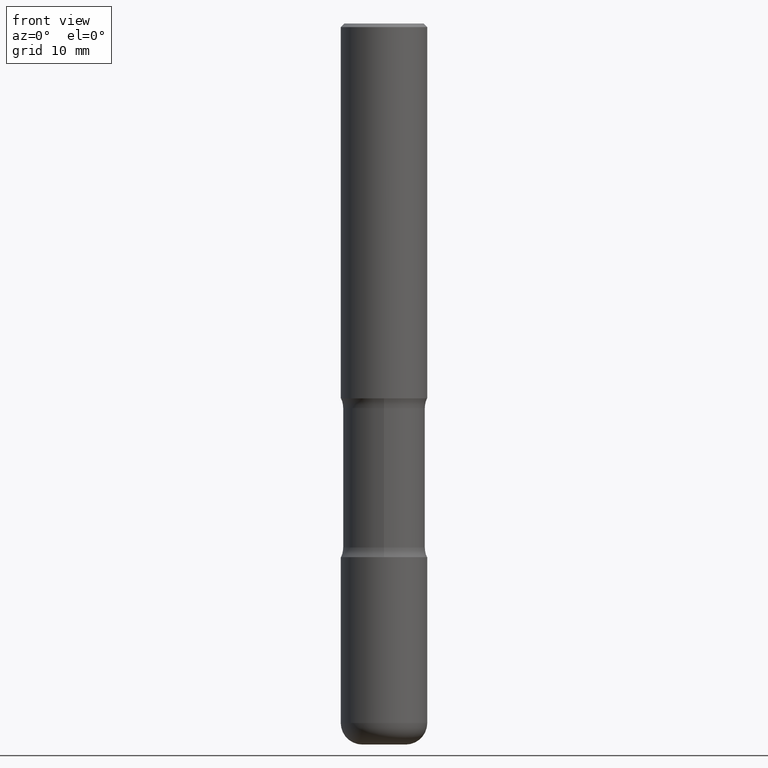
[diagram: clean part render]
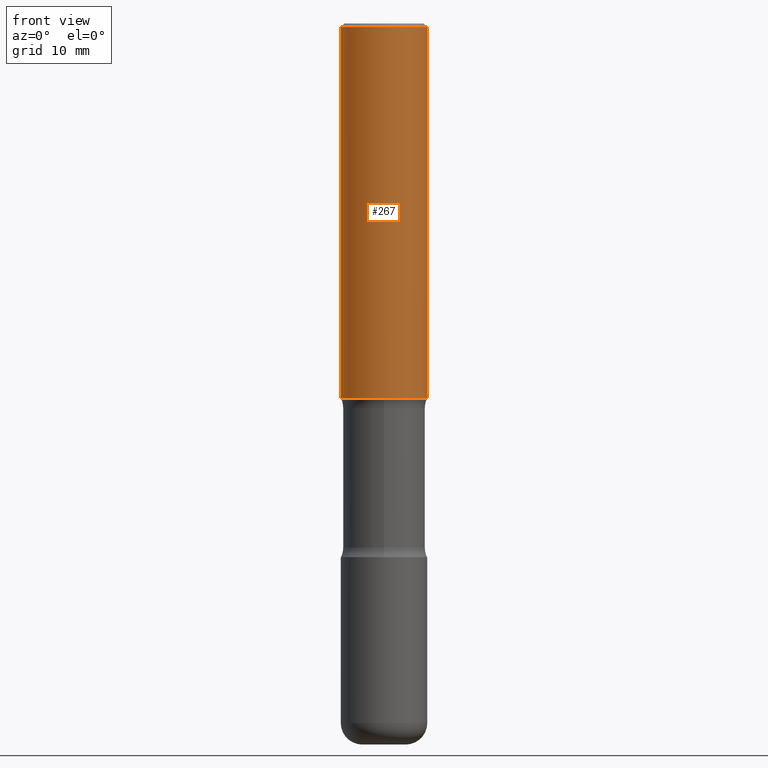
[diagram: same view with one face highlighted and labeled with its STEP entity id]
A machine part, front view. The second image highlights one B-rep face of the part: STEP entity #267.
In plain terms, the highlighted cylindrical surface (partial cylindrical patch) has radius 5.9995 mm, axis along (-0, 0, 1).
Its self-contained STEP definition (entity closure, byte-faithful):
#11 = DIRECTION ( 'NONE',  ( 1.000000000000000000, -6.982962677686269077E-15, 0.000000000000000000 ) ) ;
#18 = EDGE_CURVE ( 'NONE', #63, #54, #206, .T. ) ;
#34 = CIRCLE ( 'NONE', #148, 0.2361999999999998823 ) ;
#54 = VERTEX_POINT ( 'NONE', #249 ) ;
#57 = CARTESIAN_POINT ( 'NONE',  ( 5.006363740022212241E-29, -7.147760596879688202E-15, -2.047200000000000131 ) ) ;
#63 = VERTEX_POINT ( 'NONE', #367 ) ;
#69 = AXIS2_PLACEMENT_3D ( 'NONE', #57, #483, #11 ) ;
#74 = DIRECTION ( 'NONE',  ( 1.000000000000000000, -6.982962677686267499E-15, 0.000000000000000000 ) ) ;
#83 = DIRECTION ( 'NONE',  ( -2.445468806185136597E-29, 3.491481338843145583E-15, 1.000000000000000000 ) ) ;
#121 = CARTESIAN_POINT ( 'NONE',  ( 4.890937612370289799E-31, -6.982962677686315028E-17, -0.02000000000000006981 ) ) ;
#134 = CARTESIAN_POINT ( 'NONE',  ( 0.000000000000000000, 0.000000000000000000, 0.000000000000000000 ) ) ;
#135 = EDGE_CURVE ( 'NONE', #63, #314, #180, .T. ) ;
#144 = EDGE_LOOP ( 'NONE', ( #310, #445, #273, #179 ) ) ;
#148 = AXIS2_PLACEMENT_3D ( 'NONE', #121, #83, #74 ) ;
#179 = ORIENTED_EDGE ( 'NONE', *, *, #550, .F. ) ;
#180 = CIRCLE ( 'NONE', #69, 0.2362000000000001321 ) ;
#186 = CARTESIAN_POINT ( 'NONE',  ( 0.2361999999999998823, -1.690279253850498179E-15, -0.02000000000000006981 ) ) ;
#187 = VERTEX_POINT ( 'NONE', #186 ) ;
#198 = CARTESIAN_POINT ( 'NONE',  ( 0.2362000000000001321, -8.797136381349186305E-15, -2.047200000000000131 ) ) ;
#206 = LINE ( 'NONE', #557, #485 ) ;
#249 = CARTESIAN_POINT ( 'NONE',  ( -0.2361999999999998823, 1.579546157692632438E-15, -0.02000000000000006981 ) ) ;
#252 = DIRECTION ( 'NONE',  ( 1.000000000000000000, -6.982962677686266711E-15, 4.876176775795936353E-29 ) ) ;
#255 = DIRECTION ( 'NONE',  ( -2.445468806185136877E-29, 3.491481338843145188E-15, 1.000000000000000000 ) ) ;
#267 = ADVANCED_FACE ( 'NONE', ( #380 ), #391, .T. ) ;
#273 = ORIENTED_EDGE ( 'NONE', *, *, #554, .T. ) ;
#303 = CARTESIAN_POINT ( 'NONE',  ( 0.2361999999999999933, -1.649375784469496131E-15, 1.151752954443000088E-29 ) ) ;
#310 = ORIENTED_EDGE ( 'NONE', *, *, #18, .F. ) ;
#314 = VERTEX_POINT ( 'NONE', #198 ) ;
#340 = DIRECTION ( 'NONE',  ( -2.445468806185136597E-29, 3.491481338843145583E-15, 1.000000000000000000 ) ) ;
#367 = CARTESIAN_POINT ( 'NONE',  ( -0.2362000000000001598, -1.930493169962915017E-15, -2.047200000000000131 ) ) ;
#378 = LINE ( 'NONE', #303, #500 ) ;
#380 = FACE_OUTER_BOUND ( 'NONE', #144, .T. ) ;
#389 = DIRECTION ( 'NONE',  ( -2.445468806185136877E-29, 3.491481338843145188E-15, 1.000000000000000000 ) ) ;
#391 = CYLINDRICAL_SURFACE ( 'NONE', #466, 0.2361999999999999933 ) ;
#445 = ORIENTED_EDGE ( 'NONE', *, *, #135, .T. ) ;
#466 = AXIS2_PLACEMENT_3D ( 'NONE', #134, #340, #252 ) ;
#483 = DIRECTION ( 'NONE',  ( -2.445468806185136597E-29, 3.491481338843145583E-15, 1.000000000000000000 ) ) ;
#485 = VECTOR ( 'NONE', #389, 39.37007874015748143 ) ;
#500 = VECTOR ( 'NONE', #255, 39.37007874015748143 ) ;
#550 = EDGE_CURVE ( 'NONE', #54, #187, #34, .T. ) ;
#554 = EDGE_CURVE ( 'NONE', #314, #187, #378, .T. ) ;
#557 = CARTESIAN_POINT ( 'NONE',  ( -0.2361999999999999933, 1.678301941865356591E-15, -1.161852468318208757E-29 ) ) ;